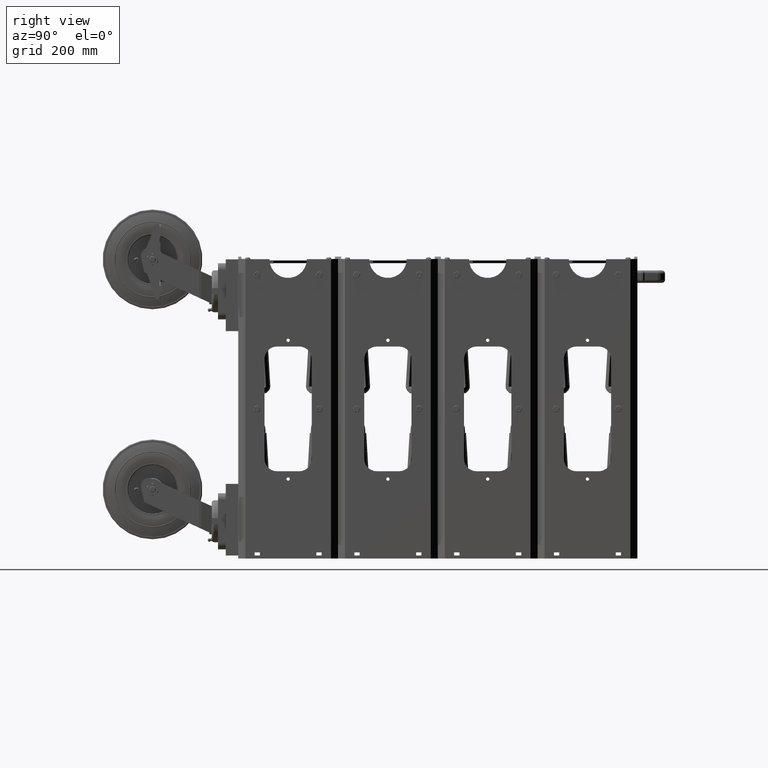
[diagram: clean part render]
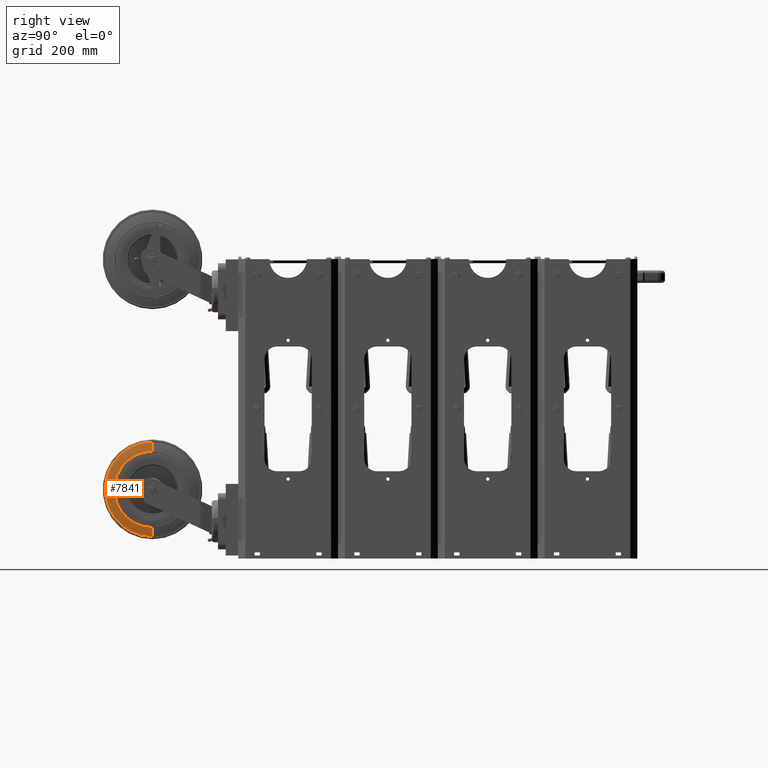
[diagram: same view with one face highlighted and labeled with its STEP entity id]
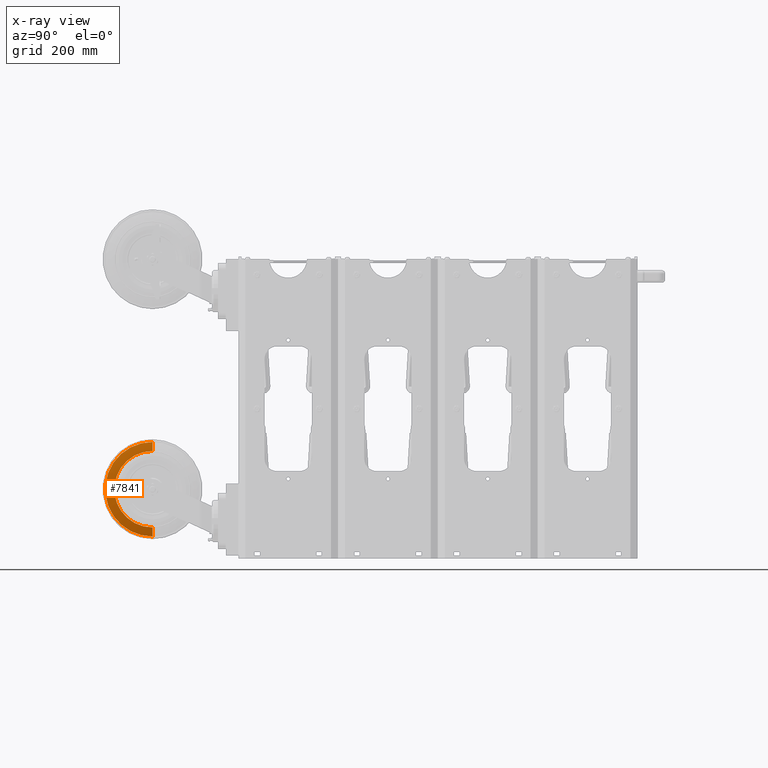
[diagram: x-ray of the same camera — body ghosted, the highlighted face saturated]
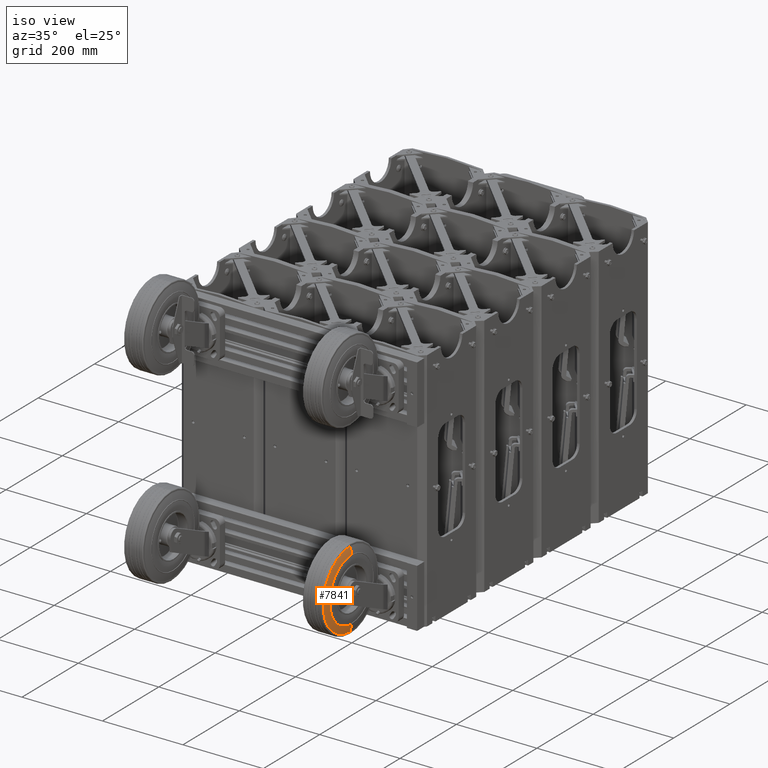
[diagram: same view with one face highlighted and labeled with its STEP entity id]
A machine part, right view. The second image highlights one B-rep face of the part: STEP entity #7841.
The next image is the same camera in x-ray: the body ghosted, the highlighted face saturated — about 0% of this face is hidden behind the body in this view.
A second angle (iso view) of the same face is appended — the face is thin or edge-on in the first view.
In plain terms, the highlighted toroidal blend (fillet) surface has major radius 48.0089 mm and minor (blend) radius 203.2 mm.
Its self-contained STEP definition (entity closure, byte-faithful):
#7841 = ADVANCED_FACE ( 'NONE', ( #23963 ), #23965, .T. ) ;
#12191 = VERTEX_POINT ( 'NONE', #41884 ) ;
#12192 = VERTEX_POINT ( 'NONE', #41885 ) ;
#12193 = VERTEX_POINT ( 'NONE', #41886 ) ;
#12194 = VERTEX_POINT ( 'NONE', #41887 ) ;
#13265 = ORIENTED_EDGE ( 'NONE', *, *, #13740, .F. ) ;
#13266 = ORIENTED_EDGE ( 'NONE', *, *, #13799, .T. ) ;
#13267 = ORIENTED_EDGE ( 'NONE', *, *, #13742, .T. ) ;
#13268 = ORIENTED_EDGE ( 'NONE', *, *, #13795, .F. ) ;
#13619 = EDGE_LOOP ( 'NONE', ( #13265, #13266, #13267, #13268 ) ) ;
#13740 = EDGE_CURVE ( 'NONE', #12192, #12193, #40787, .T. ) ;
#13742 = EDGE_CURVE ( 'NONE', #12191, #12194, #40791, .T. ) ;
#13795 = EDGE_CURVE ( 'NONE', #12193, #12194, #40851, .T. ) ;
#13799 = EDGE_CURVE ( 'NONE', #12192, #12191, #40857, .T. ) ;
#23128 = AXIS2_PLACEMENT_3D ( 'NONE', #25007, #25013, #25021 ) ;
#23963 = FACE_OUTER_BOUND ( 'NONE', #13619, .T. ) ;
#23965 = TOROIDAL_SURFACE ( 'NONE', #23128, 1.890114064769893700, 8.000000000003385700 ) ;
#25007 = CARTESIAN_POINT ( 'NONE',  ( 2.562500000000000400, -5.250000000000000000, 6.833628195641391100 ) ) ;
#25013 = DIRECTION ( 'NONE',  ( 0.0000000000000000000, 0.0000000000000000000, -1.000000000000000000 ) ) ;
#25021 = DIRECTION ( 'NONE',  ( -1.000000000000000000, 0.0000000000000000000, 0.0000000000000000000 ) ) ;
#30913 = AXIS2_PLACEMENT_3D ( 'NONE', #42412, #42413, #42414 ) ;
#30916 = AXIS2_PLACEMENT_3D ( 'NONE', #42394, #42419, #42420 ) ;
#30955 = AXIS2_PLACEMENT_3D ( 'NONE', #42565, #42566, #42567 ) ;
#30961 = AXIS2_PLACEMENT_3D ( 'NONE', #42571, #42579, #42580 ) ;
#40787 = CIRCLE ( 'NONE', #30913, 8.000000000003385700 ) ;
#40791 = CIRCLE ( 'NONE', #30916, 8.000000000003385700 ) ;
#40851 = CIRCLE ( 'NONE', #30955, 3.062500000004122500 ) ;
#40857 = CIRCLE ( 'NONE', #30961, 3.790000000000613800 ) ;
#41884 = CARTESIAN_POINT ( 'NONE',  ( -1.227500000000615800, -5.250000000000000000, -0.9375000000047619700 ) ) ;
#41885 = CARTESIAN_POINT ( 'NONE',  ( 6.352500000000615500, -5.250000000000000000, -0.9375000000047619700 ) ) ;
#41886 = CARTESIAN_POINT ( 'NONE',  ( 5.625000000004122000, -5.250000000000000900, -1.080000000004340800 ) ) ;
#41887 = CARTESIAN_POINT ( 'NONE',  ( -0.5000000000041217000, -5.250000000000000000, -1.080000000004340800 ) ) ;
#42394 = CARTESIAN_POINT ( 'NONE',  ( 0.6723859352301065900, -5.250000000000000000, 6.833628195641391100 ) ) ;
#42412 = CARTESIAN_POINT ( 'NONE',  ( 4.452614064769894000, -5.250000000000000000, 6.833628195641391100 ) ) ;
#42413 = DIRECTION ( 'NONE',  ( -1.224646799147353200E-016, 1.000000000000000000, 0.0000000000000000000 ) ) ;
#42414 = DIRECTION ( 'NONE',  ( -1.000000000000000000, -1.365923996831553500E-016, 0.0000000000000000000 ) ) ;
#42419 = DIRECTION ( 'NONE',  ( -0.0000000000000000000, -1.000000000000000000, -0.0000000000000000000 ) ) ;
#42420 = DIRECTION ( 'NONE',  ( 0.0000000000000000000, 0.0000000000000000000, -1.000000000000000000 ) ) ;
#42565 = CARTESIAN_POINT ( 'NONE',  ( 2.562500000000000400, -5.250000000000000000, -1.080000000004340800 ) ) ;
#42566 = DIRECTION ( 'NONE',  ( 0.0000000000000000000, 0.0000000000000000000, -1.000000000000000000 ) ) ;
#42567 = DIRECTION ( 'NONE',  ( -1.000000000000000000, 0.0000000000000000000, 0.0000000000000000000 ) ) ;
#42571 = CARTESIAN_POINT ( 'NONE',  ( 2.562500000000000400, -5.250000000000000000, -0.9375000000047620800 ) ) ;
#42579 = DIRECTION ( 'NONE',  ( 0.0000000000000000000, 0.0000000000000000000, -1.000000000000000000 ) ) ;
#42580 = DIRECTION ( 'NONE',  ( -1.000000000000000000, 0.0000000000000000000, 0.0000000000000000000 ) ) ;